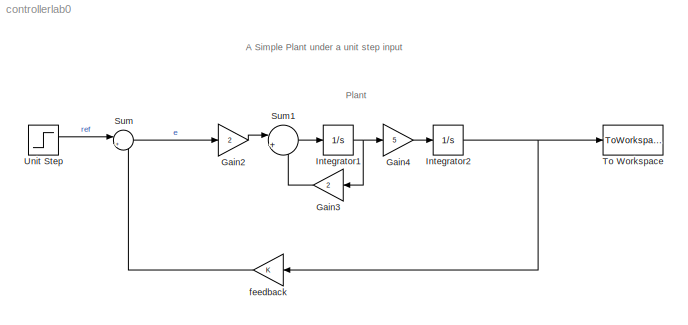
MODEL controllerlab0
KIND model
BLOCK [Gain] Gain2
  Gain = 2
  OutDataTypeMode = Inherit via internal rule
  ParameterDataTypeMode = Inherit via internal rule
  SaturateOnIntegerOverflow = off
BLOCK [Gain] Gain3
  Gain = 2
  OutDataTypeMode = Inherit via internal rule
  ParameterDataTypeMode = Inherit via internal rule
  SaturateOnIntegerOverflow = off
BLOCK [Gain] Gain4
  Gain = 5
  OutDataTypeMode = Inherit via internal rule
  ParameterDataTypeMode = Inherit via internal rule
  SaturateOnIntegerOverflow = off
BLOCK [Integrator] Integrator1
  IgnoreLimit = off
  Ports = [1, 1]
BLOCK [Integrator] Integrator2
  IgnoreLimit = off
  Ports = [1, 1]
BLOCK [Sum] Sum
  IconShape = round
  InputSameDT = off
  Inputs = |+-
  OutDataTypeMode = Inherit via internal rule
  Ports = [2, 1]
  SaturateOnIntegerOverflow = off
BLOCK [Sum] Sum1
  IconShape = round
  InputSameDT = off
  Inputs = |+-
  OutDataTypeMode = Inherit via internal rule
  Ports = [2, 1]
  SaturateOnIntegerOverflow = off
BLOCK [ToWorkspace] To Workspace
  MaxDataPoints = inf
  SampleTime = -1
  SaveFormat = Array
  VariableName = y
BLOCK [Step] Unit Step
  After = UnitStepVal
  SampleTime = 0
  Time = 0
BLOCK [Gain] feedback
  OutDataTypeMode = Inherit via internal rule
  ParameterDataTypeMode = Inherit via internal rule
  SaturateOnIntegerOverflow = off
ANNOTATION (root): A Simple Plant under a unit step input
ANNOTATION (root): Plant
LINE Gain2:1 -> Sum1:1
LINE Gain3:1 -> Sum1:2
LINE Gain4:1 -> Integrator2:1
NET Integrator1:1 -> Gain3:1, Gain4:1
NET Integrator2:1 -> To Workspace:1, feedback:1
LINE Sum1:1 -> Integrator1:1
LINE Sum:1 -> Gain2:1
LINE Unit Step:1 -> Sum:1
LINE feedback:1 -> Sum:2
note: NET lines group one-source signal fan-out (src -> all destinations, sorted); 1:1 wires keep LINE
